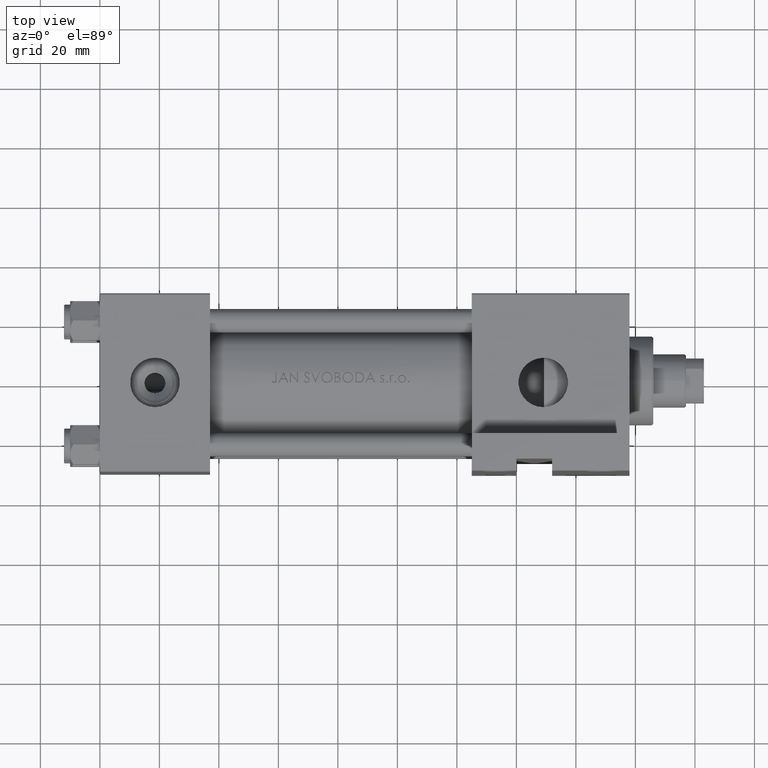
[diagram: clean part render]
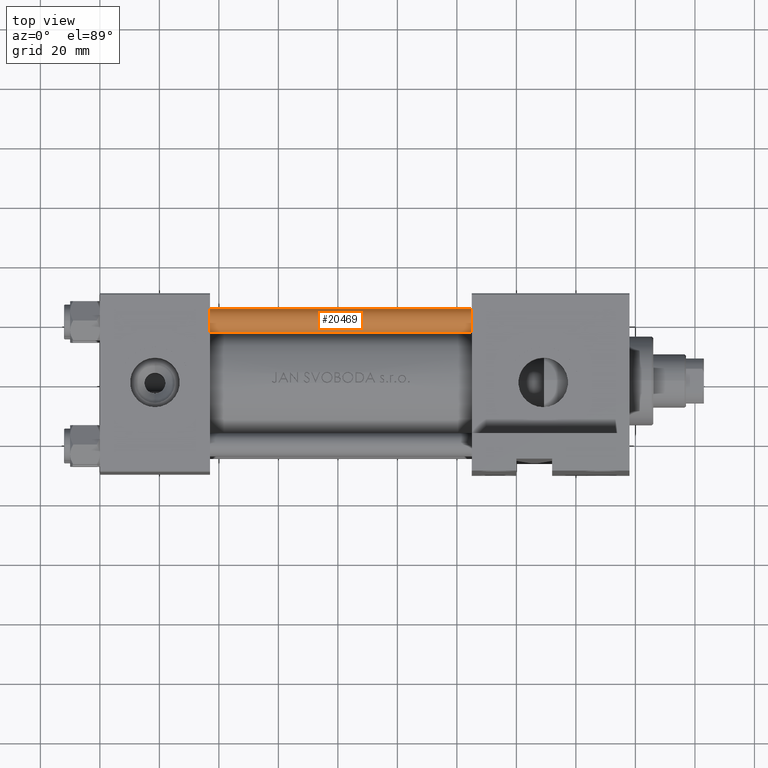
[diagram: same view with one face highlighted and labeled with its STEP entity id]
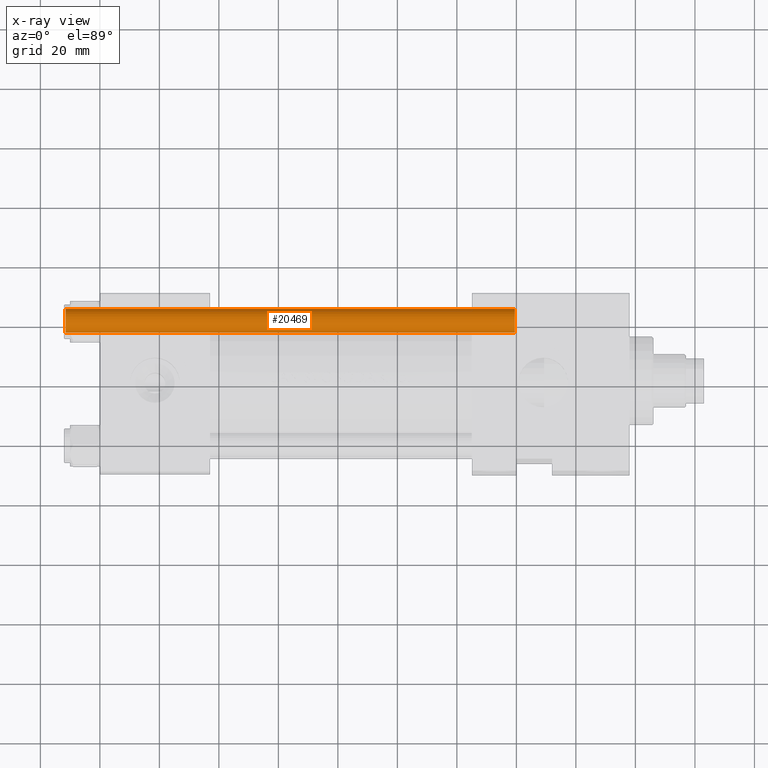
[diagram: x-ray of the same camera — body ghosted, the highlighted face saturated]
A machine part, top view. The second image highlights one B-rep face of the part: STEP entity #20469.
The next image is the same camera in x-ray: the body ghosted, the highlighted face saturated — about 0% of this face is hidden behind the body in this view.
In plain terms, the highlighted cylindrical surface (edge-blend (fillet) strip) has radius 4 mm, axis along (1, -0, 0).
Its self-contained STEP definition (entity closure, byte-faithful):
#1839 = DIRECTION ( 'NONE',  ( 1.000000000000000000, 0.000000000000000000, 0.000000000000000000 ) ) ;
#2467 = CYLINDRICAL_SURFACE ( 'NONE', #28476, 4.000000000000000000 ) ;
#4305 = AXIS2_PLACEMENT_3D ( 'NONE', #37250, #33069, #14344 ) ;
#5284 = CARTESIAN_POINT ( 'NONE',  ( 0.000000000000000000, 0.000000000000000000, 0.5000000000000281997 ) ) ;
#5439 = CARTESIAN_POINT ( 'NONE',  ( 0.000000000000000000, 0.000000000000000000, 152.0000000000000000 ) ) ;
#11042 = VECTOR ( 'NONE', #14016, 1000.000000000000000 ) ;
#11195 = CARTESIAN_POINT ( 'NONE',  ( -4.000000000000000000, 0.000000000000000000, 0.5000000000000281997 ) ) ;
#13810 = FACE_OUTER_BOUND ( 'NONE', #27872, .T. ) ;
#14016 = DIRECTION ( 'NONE',  ( -0.000000000000000000, -0.000000000000000000, -1.000000000000000000 ) ) ;
#14258 = LINE ( 'NONE', #33452, #11042 ) ;
#14344 = DIRECTION ( 'NONE',  ( 1.000000000000000000, 0.000000000000000000, 0.000000000000000000 ) ) ;
#15047 = VERTEX_POINT ( 'NONE', #17223 ) ;
#15907 = VERTEX_POINT ( 'NONE', #31765 ) ;
#16875 = DIRECTION ( 'NONE',  ( -0.000000000000000000, -0.000000000000000000, 1.000000000000000000 ) ) ;
#17223 = CARTESIAN_POINT ( 'NONE',  ( -4.000000000000000000, 0.000000000000000000, 151.5000000000000284 ) ) ;
#17394 = VECTOR ( 'NONE', #42824, 1000.000000000000000 ) ;
#17710 = CIRCLE ( 'NONE', #20861, 4.000000000000000000 ) ;
#18888 = EDGE_CURVE ( 'NONE', #22375, #15047, #48396, .T. ) ;
#19186 = ORIENTED_EDGE ( 'NONE', *, *, #41712, .F. ) ;
#20469 = ADVANCED_FACE ( 'NONE', ( #13810 ), #2467, .T. ) ;
#20861 = AXIS2_PLACEMENT_3D ( 'NONE', #5284, #16875, #1839 ) ;
#22120 = ORIENTED_EDGE ( 'NONE', *, *, #48314, .T. ) ;
#22375 = VERTEX_POINT ( 'NONE', #37512 ) ;
#25058 = ORIENTED_EDGE ( 'NONE', *, *, #18888, .T. ) ;
#25739 = EDGE_CURVE ( 'NONE', #29482, #15907, #17710, .T. ) ;
#27872 = EDGE_LOOP ( 'NONE', ( #19186, #25058, #22120, #44709 ) ) ;
#28045 = LINE ( 'NONE', #43072, #17394 ) ;
#28476 = AXIS2_PLACEMENT_3D ( 'NONE', #5439, #43864, #31803 ) ;
#29482 = VERTEX_POINT ( 'NONE', #11195 ) ;
#31765 = CARTESIAN_POINT ( 'NONE',  ( 4.000000000000000000, 4.898587196589412829E-16, 0.5000000000000281997 ) ) ;
#31803 = DIRECTION ( 'NONE',  ( -1.000000000000000000, 0.000000000000000000, 0.000000000000000000 ) ) ;
#33069 = DIRECTION ( 'NONE',  ( 0.000000000000000000, 0.000000000000000000, -1.000000000000000000 ) ) ;
#33452 = CARTESIAN_POINT ( 'NONE',  ( 4.000000000000000000, 4.898587196589412829E-16, 152.0000000000000000 ) ) ;
#37250 = CARTESIAN_POINT ( 'NONE',  ( 0.000000000000000000, 0.000000000000000000, 151.5000000000000284 ) ) ;
#37512 = CARTESIAN_POINT ( 'NONE',  ( 4.000000000000000000, 4.898587196589412829E-16, 151.5000000000000284 ) ) ;
#41712 = EDGE_CURVE ( 'NONE', #22375, #15907, #14258, .T. ) ;
#42824 = DIRECTION ( 'NONE',  ( -0.000000000000000000, -0.000000000000000000, -1.000000000000000000 ) ) ;
#43072 = CARTESIAN_POINT ( 'NONE',  ( -4.000000000000000000, 0.000000000000000000, 152.0000000000000000 ) ) ;
#43864 = DIRECTION ( 'NONE',  ( -0.000000000000000000, -0.000000000000000000, -1.000000000000000000 ) ) ;
#44709 = ORIENTED_EDGE ( 'NONE', *, *, #25739, .T. ) ;
#48314 = EDGE_CURVE ( 'NONE', #15047, #29482, #28045, .T. ) ;
#48396 = CIRCLE ( 'NONE', #4305, 4.000000000000000000 ) ;